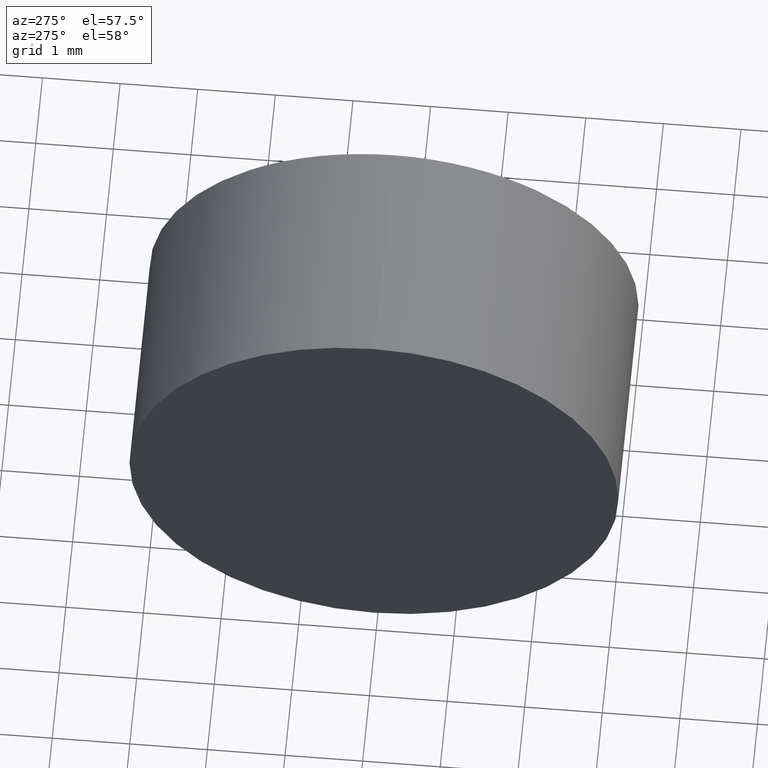
[diagram: clean part render]
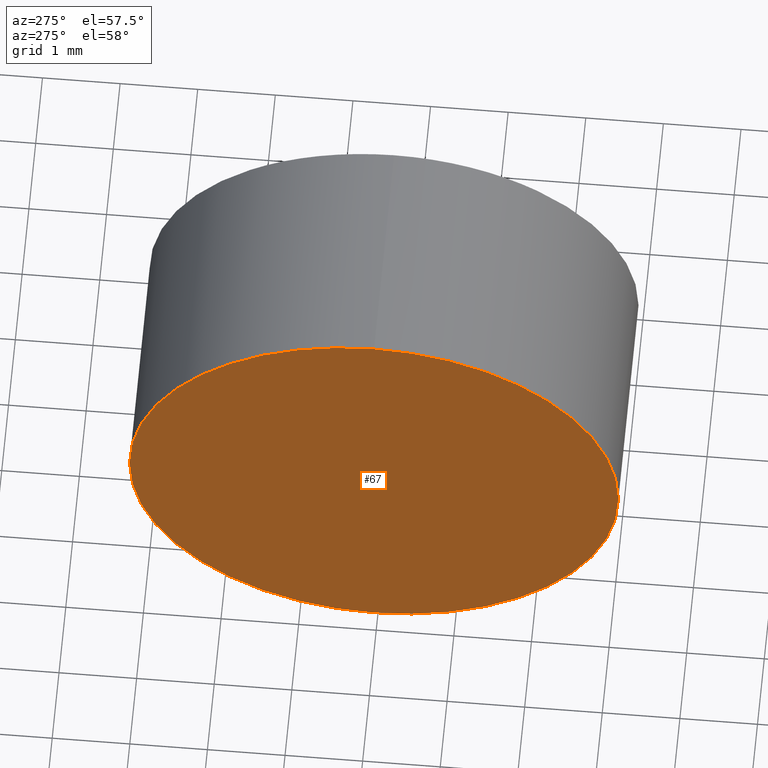
[diagram: same view with one face highlighted and labeled with its STEP entity id]
A machine part, auxiliary view. The second image highlights one B-rep face of the part: STEP entity #67.
In plain terms, the highlighted planar face has unit normal (1, 0, 0).
Its self-contained STEP definition (entity closure, byte-faithful):
#10 = EDGE_LOOP ( 'NONE', ( #169, #185 ) ) ;
#18 = AXIS2_PLACEMENT_3D ( 'NONE', #168, #108, #117 ) ;
#28 = DIRECTION ( 'NONE',  ( 0.0000000000000000000, 0.0000000000000000000, 1.000000000000000000 ) ) ;
#41 = AXIS2_PLACEMENT_3D ( 'NONE', #173, #50, #90 ) ;
#45 = DIRECTION ( 'NONE',  ( -1.000000000000000000, -0.0000000000000000000, -0.0000000000000000000 ) ) ;
#50 = DIRECTION ( 'NONE',  ( -1.000000000000000000, -0.0000000000000000000, -0.0000000000000000000 ) ) ;
#57 = PLANE ( 'NONE',  #18 ) ;
#67 = ADVANCED_FACE ( 'NONE', ( #140 ), #57, .F. ) ;
#68 = EDGE_CURVE ( 'NONE', #77, #144, #100, .T. ) ;
#77 = VERTEX_POINT ( 'NONE', #99 ) ;
#90 = DIRECTION ( 'NONE',  ( 0.0000000000000000000, 0.0000000000000000000, 1.000000000000000000 ) ) ;
#99 = CARTESIAN_POINT ( 'NONE',  ( 22.17218947520228100, 13.04452057459747900, 3.150000000000001700 ) ) ;
#100 = CIRCLE ( 'NONE', #103, 3.150000000000001700 ) ;
#103 = AXIS2_PLACEMENT_3D ( 'NONE', #135, #45, #28 ) ;
#108 = DIRECTION ( 'NONE',  ( 1.000000000000000000, 0.0000000000000000000, 0.0000000000000000000 ) ) ;
#117 = DIRECTION ( 'NONE',  ( 0.0000000000000000000, 0.0000000000000000000, -1.000000000000000000 ) ) ;
#132 = CIRCLE ( 'NONE', #41, 3.150000000000001700 ) ;
#135 = CARTESIAN_POINT ( 'NONE',  ( 22.17218947520228100, 13.04452057459747900, 0.0000000000000000000 ) ) ;
#140 = FACE_OUTER_BOUND ( 'NONE', #10, .T. ) ;
#144 = VERTEX_POINT ( 'NONE', #158 ) ;
#158 = CARTESIAN_POINT ( 'NONE',  ( 22.17218947520228100, 13.04452057459747900, -3.150000000000001700 ) ) ;
#167 = EDGE_CURVE ( 'NONE', #144, #77, #132, .T. ) ;
#168 = CARTESIAN_POINT ( 'NONE',  ( 22.17218947520228100, 13.04452057459747900, 0.0000000000000000000 ) ) ;
#169 = ORIENTED_EDGE ( 'NONE', *, *, #68, .T. ) ;
#173 = CARTESIAN_POINT ( 'NONE',  ( 22.17218947520228100, 13.04452057459747900, 0.0000000000000000000 ) ) ;
#185 = ORIENTED_EDGE ( 'NONE', *, *, #167, .T. ) ;